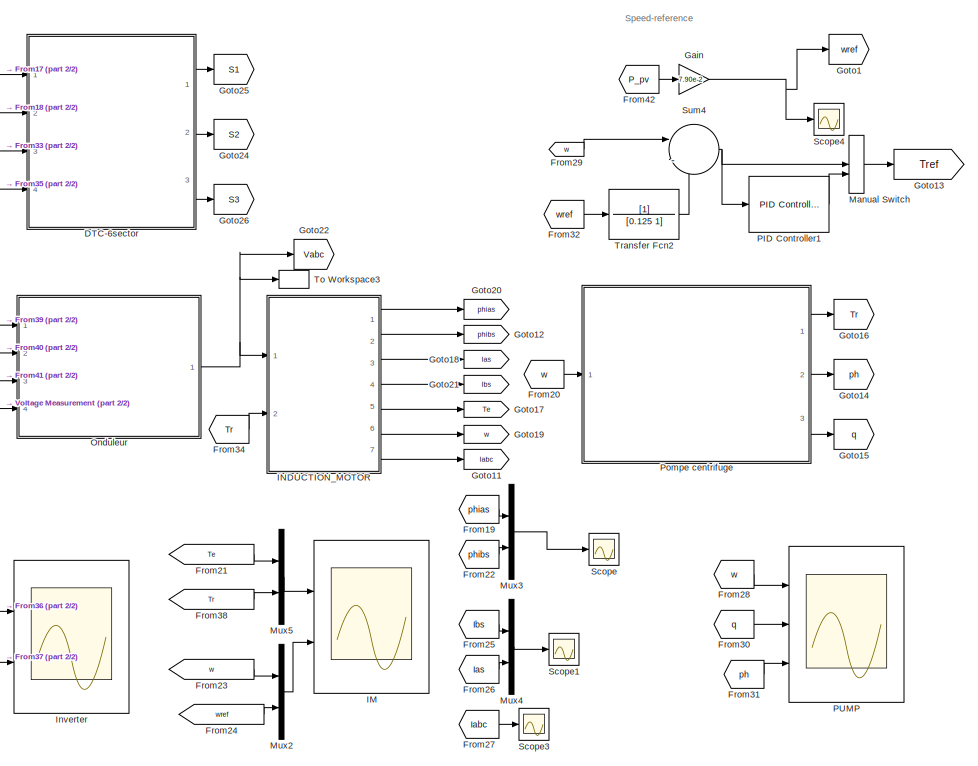
[diagram: root canvas - part 1/2, right side, full height]
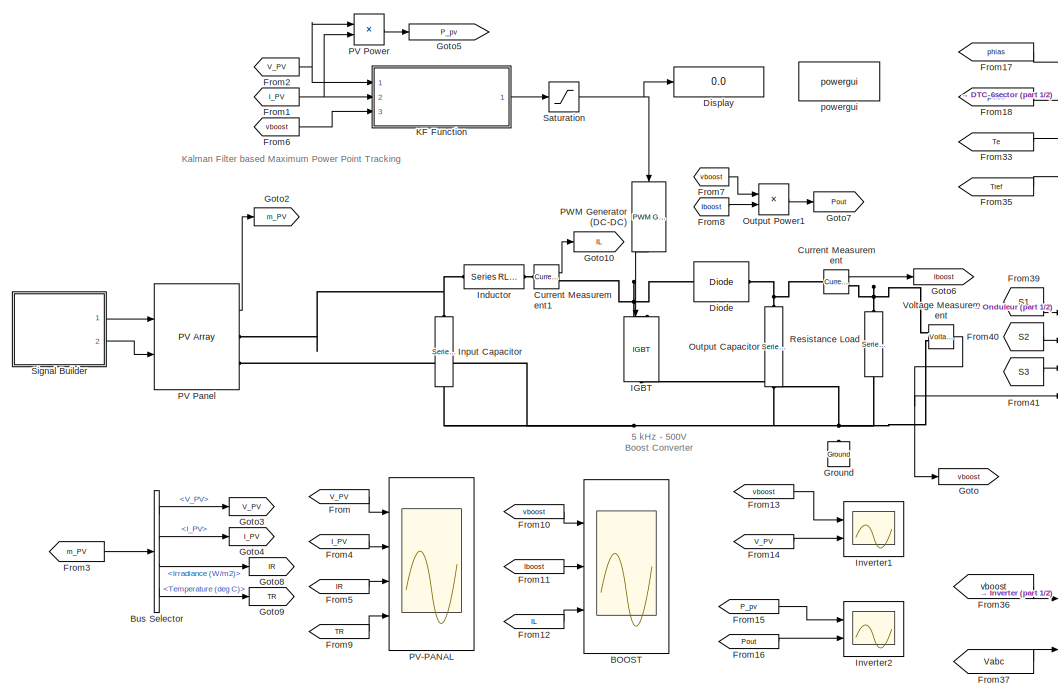
[diagram: root canvas - part 2/2, left side, full height]
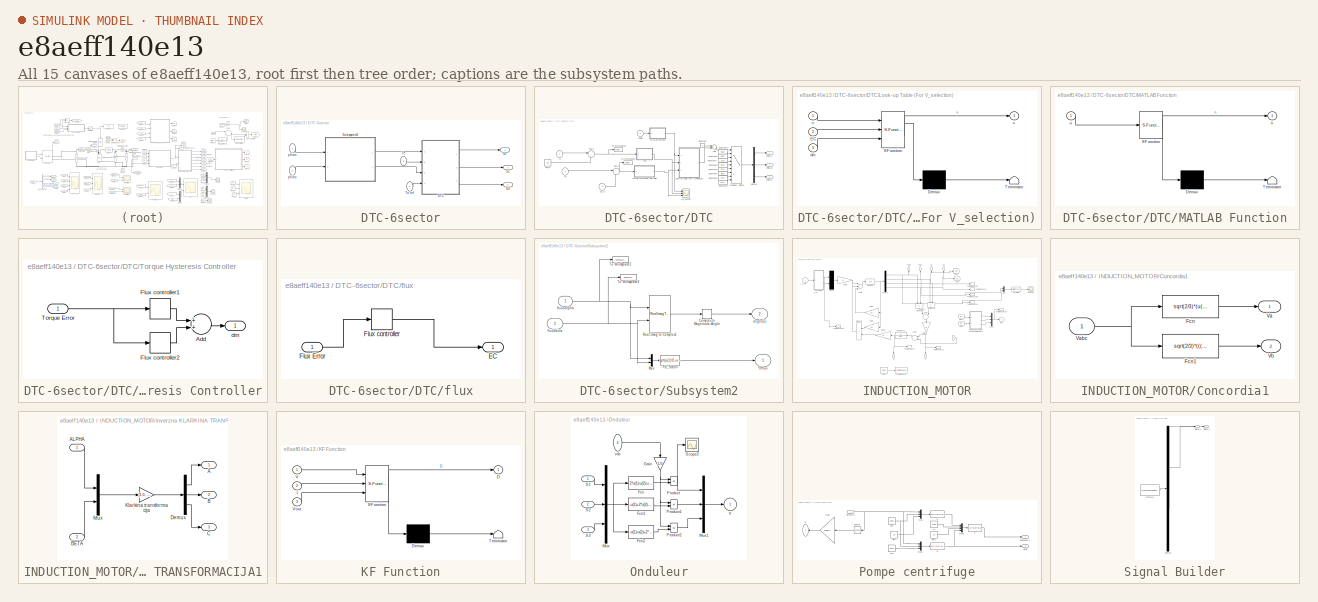
[diagram: thumbnail index - all 15 canvases of the model, root first then tree order]
MODEL slx_e8aeff140e13
KIND model
CONFIG AbsTol = auto
CONFIG EnableMultiTasking = off
CONFIG FixedStep = auto
CONFIG MaxStep = auto
CONFIG MinStep = auto
CONFIG RelTol = 1e-3
CONFIG SampleTimeConstraint = Unconstrained
CONFIG Solver = ode45
CONFIG SolverName = ode45
CONFIG StartTime = 0.0
CONFIG StopTime = 6
BLOCK [Reference]  Output Capacitor     REF=powerlib/Elements/Series RLC Branch
  Ports = [0, 0, 0, 0, 0, 1, 1]
  SourceBlock = powerlib/Elements/Series RLC Branch
  SourceProductBaseCode = PS
  SourceProductName = Simscape Power Systems
  SourceType = Series RLC Branch
BLOCK [Reference]  Resistance Load        REF=powerlib/Elements/Series RLC Branch
  Ports = [0, 0, 0, 0, 0, 1, 1]
  SourceBlock = powerlib/Elements/Series RLC Branch
  SourceProductBaseCode = PS
  SourceProductName = Simscape Power Systems
  SourceType = Series RLC Branch
BLOCK [Scope] BOOST
  Floating = off
  NumInputPorts = 3
  Ports = [3]
  ScopeSpecificationString = Simulink.scopes.TimeScopeBlockCfg('CurrentConfiguration', extmgr.ConfigurationSet(extmgr.Configuration('Core','General UI',true,'FigureColor',[1 1 1]),extmgr.Configuration('Core','Source UI',true),extmgr.Configuration('Sources','WiredSimulink',true,'DataLoggingVariableName','ScopeData1'),extmgr.Configuration('Visuals','Time Domain',true,'SerializedDisplays',{struct('MinYLimReal','-62.20742','MaxYL...<+3096ch>
BLOCK [BusSelector] Bus Selector
  OutputAsBus = off
  OutputSignals = V_PV,I_PV,Irradiance (W/m2),Temperature (deg C)
  Ports = [1, 4]
BLOCK [Reference] Current Measurement  REF=powerlib/Measurements/Current Measurement
  Ports = [0, 1, 0, 0, 0, 1, 1]
  SourceBlock = powerlib/Measurements/Current Measurement
  SourceProductBaseCode = PS
  SourceProductName = Simscape Power Systems
  SourceType = Current Measurement
  UserDataPersistent = on
BLOCK [Reference] Current Measurement1  REF=powerlib/Measurements/Current Measurement
  Ports = [0, 1, 0, 0, 0, 1, 1]
  SourceBlock = powerlib/Measurements/Current Measurement
  SourceProductBaseCode = PS
  SourceProductName = Simscape Power Systems
  SourceType = Current Measurement
  UserDataPersistent = on
BLOCK [SubSystem] DTC-6sector
  Ports = [4, 3]
  RequestExecContextInheritance = off
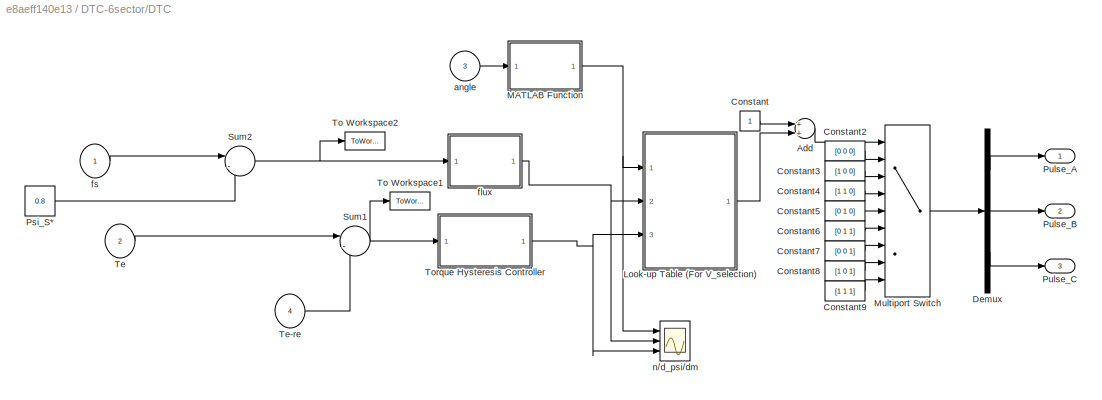
BLOCK [SubSystem] DTC-6sector/DTC
  Ports = [4, 3]
  RequestExecContextInheritance = off
BLOCK [Sum] DTC-6sector/DTC/Add
  InputSameDT = off
  OutDataTypeStr = Inherit: Inherit via internal rule
  Ports = [2, 1]
  SaturateOnIntegerOverflow = off
BLOCK [Constant] DTC-6sector/DTC/Constant
BLOCK [Constant] DTC-6sector/DTC/Constant2
  Value = [0 0 0]
BLOCK [Constant] DTC-6sector/DTC/Constant3
  Value = [1 0 0]
BLOCK [Constant] DTC-6sector/DTC/Constant4
  Value = [1 1 0]
BLOCK [Constant] DTC-6sector/DTC/Constant5
  Value = [0 1 0]
BLOCK [Constant] DTC-6sector/DTC/Constant6
  Value = [0 1 1]
BLOCK [Constant] DTC-6sector/DTC/Constant7
  Value = [0 0 1]
BLOCK [Constant] DTC-6sector/DTC/Constant8
  Value = [1 0 1]
BLOCK [Constant] DTC-6sector/DTC/Constant9
  Value = [1 1 1]
BLOCK [Demux] DTC-6sector/DTC/Demux
  DisplayOption = bar
  Outputs = 3
  Ports = [1, 3]
BLOCK [SubSystem] DTC-6sector/DTC/Look-up Table (For V_selection)
  ErrorFcn = Stateflow.Translate.translate
  PermitHierarchicalResolution = ExplicitOnly
  Ports = [3, 1]
  RequestExecContextInheritance = off
  SFBlockType = MATLAB Function
  TreatAsAtomicUnit = on
BLOCK [Demux] DTC-6sector/DTC/Look-up Table (For V_selection)/ Demux 
  Outputs = 1
  Ports = [1, 1]
BLOCK [S-Function] DTC-6sector/DTC/Look-up Table (For V_selection)/ SFunction 
  EnableBusSupport = on
  FunctionName = sf_sfun
  PortCounts = [3 2]
  Ports = [3, 2]
  SFcnIsStateOwnerBlock = off
  SFunctionDeploymentMode = off
  Tag = Stateflow S-Function KALMDTC 1
BLOCK [Terminator] DTC-6sector/DTC/Look-up Table (For V_selection)/ Terminator 
BLOCK [Inport] DTC-6sector/DTC/Look-up Table (For V_selection)/EC
  IconDisplay = Port number
  Port = 2
BLOCK [Inport] DTC-6sector/DTC/Look-up Table (For V_selection)/dm
  IconDisplay = Port number
  Port = 3
BLOCK [Inport] DTC-6sector/DTC/Look-up Table (For V_selection)/n
  IconDisplay = Port number
BLOCK [Outport] DTC-6sector/DTC/Look-up Table (For V_selection)/v
  IconDisplay = Port number
BLOCK [SubSystem] DTC-6sector/DTC/MATLAB Function
  ErrorFcn = Stateflow.Translate.translate
  PermitHierarchicalResolution = ExplicitOnly
  Ports = [1, 1]
  RequestExecContextInheritance = off
  SFBlockType = MATLAB Function
  TreatAsAtomicUnit = on
BLOCK [Demux] DTC-6sector/DTC/MATLAB Function/ Demux 
  Outputs = 1
  Ports = [1, 1]
BLOCK [S-Function] DTC-6sector/DTC/MATLAB Function/ SFunction 
  EnableBusSupport = on
  FunctionName = sf_sfun
  PortCounts = [1 2]
  Ports = [1, 2]
  SFcnIsStateOwnerBlock = off
  SFunctionDeploymentMode = off
  Tag = Stateflow S-Function KALMDTC 3
BLOCK [Terminator] DTC-6sector/DTC/MATLAB Function/ Terminator 
BLOCK [Outport] DTC-6sector/DTC/MATLAB Function/n
  IconDisplay = Port number
BLOCK [Inport] DTC-6sector/DTC/MATLAB Function/u
  IconDisplay = Port number
BLOCK [MultiPortSwitch] DTC-6sector/DTC/Multiport Switch
  InputSameDT = off
  Inputs = 8
  Ports = [9, 1]
  SaturateOnIntegerOverflow = off
BLOCK [Constant] DTC-6sector/DTC/Psi_S*
  Value = 0.8
BLOCK [Outport] DTC-6sector/DTC/Pulse_A
  IconDisplay = Port number
BLOCK [Outport] DTC-6sector/DTC/Pulse_B
  IconDisplay = Port number
  Port = 2
BLOCK [Outport] DTC-6sector/DTC/Pulse_C
  IconDisplay = Port number
  Port = 3
BLOCK [Sum] DTC-6sector/DTC/Sum1
  IconShape = round
  InputSameDT = off
  Inputs = |-+
  OutDataTypeStr = Inherit: Inherit via internal rule
  Ports = [2, 1]
  SaturateOnIntegerOverflow = off
BLOCK [Sum] DTC-6sector/DTC/Sum2
  IconShape = round
  InputSameDT = off
  Inputs = |-+
  OutDataTypeStr = Inherit: Inherit via internal rule
  Ports = [2, 1]
  SaturateOnIntegerOverflow = off
BLOCK [Inport] DTC-6sector/DTC/Te
  IconDisplay = Port number
  Port = 2
BLOCK [Inport] DTC-6sector/DTC/Te-re
  IconDisplay = Port number
  Port = 4
BLOCK [ToWorkspace] DTC-6sector/DTC/To Workspace1
  MaxDataPoints = inf
  Ports = [1]
  SampleTime = -1
  VariableName = Terr1
BLOCK [ToWorkspace] DTC-6sector/DTC/To Workspace2
  MaxDataPoints = inf
  Ports = [1]
  SampleTime = -1
  VariableName = FXerr
BLOCK [SubSystem] DTC-6sector/DTC/Torque Hysteresis Controller
  Ports = [1, 1]
  RequestExecContextInheritance = off
BLOCK [Sum] DTC-6sector/DTC/Torque Hysteresis Controller/Add
  InputSameDT = off
  OutDataTypeStr = Inherit: Inherit via internal rule
  Ports = [2, 1]
  SaturateOnIntegerOverflow = off
BLOCK [Relay] DTC-6sector/DTC/Torque Hysteresis Controller/Flux controller1
  InputProcessing = Elements as channels (sample based)
  OffSwitchValue = 0
  OnSwitchValue = 0.002
BLOCK [Relay] DTC-6sector/DTC/Torque Hysteresis Controller/Flux controller2
  InputProcessing = Elements as channels (sample based)
  OffOutputValue = -1
  OffSwitchValue = -0.002
  OnOutputValue = 0
  OnSwitchValue = 0
BLOCK [Inport] DTC-6sector/DTC/Torque Hysteresis Controller/Torque Error
  IconDisplay = Port number
BLOCK [Outport] DTC-6sector/DTC/Torque Hysteresis Controller/dm
  IconDisplay = Port number
BLOCK [Inport] DTC-6sector/DTC/angle
  IconDisplay = Port number
  Port = 3
BLOCK [SubSystem] DTC-6sector/DTC/flux
  Ports = [1, 1]
  RequestExecContextInheritance = off
BLOCK [Outport] DTC-6sector/DTC/flux/EC
  IconDisplay = Port number
BLOCK [Inport] DTC-6sector/DTC/flux/Flux Error
  IconDisplay = Port number
BLOCK [Relay] DTC-6sector/DTC/flux/Flux controller
  InputProcessing = Elements as channels (sample based)
  OffSwitchValue = -0.0002
  OnSwitchValue = 0.0002
BLOCK [Inport] DTC-6sector/DTC/fs
  IconDisplay = Port number
BLOCK [Scope] DTC-6sector/DTC/n//d_psi//dm
  Floating = off
  NumInputPorts = 3
  Ports = [3]
  ScopeSpecificationString = Simulink.scopes.TimeScopeBlockCfg('CurrentConfiguration', extmgr.ConfigurationSet(extmgr.Configuration('Core','General UI',true),extmgr.Configuration('Core','Source UI',true),extmgr.Configuration('Sources','WiredSimulink',true,'DataLoggingVariableName','ScopeData5'),extmgr.Configuration('Visuals','Time Domain',true,'SerializedDisplays',{struct('MinYLimReal','0.375','MaxYLimReal','6.625','YLabelRea...<+2787ch>
BLOCK [Outport] DTC-6sector/S1
  IconDisplay = Port number
BLOCK [Outport] DTC-6sector/S2
  IconDisplay = Port number
  Port = 2
BLOCK [Outport] DTC-6sector/S3
  IconDisplay = Port number
  Port = 3
BLOCK [SubSystem] DTC-6sector/Subsystem2
  Ports = [2, 2]
  RequestExecContextInheritance = off
BLOCK [Outport] DTC-6sector/Subsystem2/*m*flux
  IconDisplay = Port number
BLOCK [ComplexToMagnitudeAngle] DTC-6sector/Subsystem2/Complex to Magnitude-Angle
  Output = Angle
  Ports = [1, 1]
BLOCK [Mux] DTC-6sector/Subsystem2/Mux
  DisplayOption = bar
  Inputs = 2
  Ports = [2, 1]
BLOCK [Fcn] DTC-6sector/Subsystem2/Psi_Stator
  Expr = sqrt(u(1)^2+u(2)^2)
BLOCK [RealImagToComplex] DTC-6sector/Subsystem2/Real-Imag to Complex1
  Ports = [2, 1]
  SampleTime = 0.00001
BLOCK [ToWorkspace] DTC-6sector/Subsystem2/To Workspace2
  MaxDataPoints = inf
  Ports = [1]
  SampleTime = -1
  VariableName = x
BLOCK [ToWorkspace] DTC-6sector/Subsystem2/To Workspace3
  MaxDataPoints = inf
  Ports = [1]
  SampleTime = -1
  VariableName = y
BLOCK [Outport] DTC-6sector/Subsystem2/angle(u)
  IconDisplay = Port number
  Port = 2
BLOCK [Inport] DTC-6sector/Subsystem2/flux-s-alpha
  IconDisplay = Port number
BLOCK [Inport] DTC-6sector/Subsystem2/flux-s-bitta
  IconDisplay = Port number
  Port = 2
BLOCK [Inport] DTC-6sector/Te
  IconDisplay = Port number
  Port = 3
BLOCK [Inport] DTC-6sector/Te-ref
  IconDisplay = Port number
  Port = 4
BLOCK [Inport] DTC-6sector/phias
  IconDisplay = Port number
BLOCK [Inport] DTC-6sector/phibs
  IconDisplay = Port number
  Port = 2
BLOCK [Reference] Diode  REF=powerlib/Power
Electronics/Diode
  Ports = [0, 0, 0, 0, 0, 1, 1]
  SourceBlock = powerlib/Power\nElectronics/Diode
  SourceProductBaseCode = PS
  SourceProductName = Simscape Power Systems
  SourceType = Diode
BLOCK [Display] Display
  Decimation = 1
  Ports = [1]
BLOCK [From] From
  GotoTag = V_PV
  TagVisibility = global
BLOCK [From] From1
  CloseFcn = tagdialog Close
  GotoTag = I_PV
  TagVisibility = global
BLOCK [From] From10
  GotoTag = vboost
BLOCK [From] From11
  GotoTag = Iboost
BLOCK [From] From12
  GotoTag = IL
BLOCK [From] From13
  GotoTag = vboost
BLOCK [From] From14
  GotoTag = V_PV
  TagVisibility = global
BLOCK [From] From15
  GotoTag = P_pv
BLOCK [From] From16
  GotoTag = Pout
BLOCK [From] From17
  GotoTag = phias
  TagVisibility = global
BLOCK [From] From18
  GotoTag = phibs
  TagVisibility = global
BLOCK [From] From19
  GotoTag = phias
  TagVisibility = global
BLOCK [From] From2
  CloseFcn = tagdialog Close
  GotoTag = V_PV
  TagVisibility = global
BLOCK [From] From20
  GotoTag = w
  TagVisibility = global
BLOCK [From] From21
  CloseFcn = tagdialog Close
  GotoTag = Te
  TagVisibility = global
BLOCK [From] From22
  GotoTag = phibs
  TagVisibility = global
BLOCK [From] From23
  CloseFcn = tagdialog Close
  GotoTag = w
  TagVisibility = global
BLOCK [From] From24
  CloseFcn = tagdialog Close
  GotoTag = wref
  TagVisibility = global
BLOCK [From] From25
  GotoTag = Ibs
  TagVisibility = global
BLOCK [From] From26
  GotoTag = Ias
  TagVisibility = global
BLOCK [From] From27
  GotoTag = Iabc
  TagVisibility = global
BLOCK [From] From28
  GotoTag = w
  TagVisibility = global
BLOCK [From] From29
  GotoTag = w
  TagVisibility = global
BLOCK [From] From3
  GotoTag = m_PV
  TagVisibility = global
BLOCK [From] From30
  GotoTag = q
  TagVisibility = global
BLOCK [From] From31
  GotoTag = ph
  TagVisibility = global
BLOCK [From] From32
  GotoTag = wref
  TagVisibility = global
BLOCK [From] From33
  GotoTag = Te
  TagVisibility = global
BLOCK [From] From34
  GotoTag = Tr
  TagVisibility = global
BLOCK [From] From35
  GotoTag = Tref
BLOCK [From] From36
  GotoTag = vboost
BLOCK [From] From37
  GotoTag = Vabc
BLOCK [From] From38
  CloseFcn = tagdialog Close
  GotoTag = Tr
  TagVisibility = global
BLOCK [From] From39
  GotoTag = S1
BLOCK [From] From4
  GotoTag = I_PV
  TagVisibility = global
BLOCK [From] From40
  GotoTag = S2
BLOCK [From] From41
  GotoTag = S3
BLOCK [From] From42
  GotoTag = P_pv
BLOCK [From] From5
  GotoTag = IR
  TagVisibility = global
BLOCK [From] From6
  CloseFcn = tagdialog Close
  GotoTag = vboost
BLOCK [From] From7
  GotoTag = vboost
BLOCK [From] From8
  GotoTag = Iboost
BLOCK [From] From9
  GotoTag = TR
  TagVisibility = global
BLOCK [Gain] Gain
  Gain = 7.90e-2
  OutDataTypeStr = Inherit: Inherit via internal rule
  ParamDataTypeStr = Inherit: Inherit via internal rule
  SaturateOnIntegerOverflow = off
BLOCK [Goto] Goto
  GotoTag = vboost
BLOCK [Goto] Goto1
  GotoTag = wref
  TagVisibility = global
BLOCK [Goto] Goto10
  GotoTag = IL
BLOCK [Goto] Goto11
  GotoTag = Iabc
  TagVisibility = global
BLOCK [Goto] Goto12
  GotoTag = phibs
  TagVisibility = global
BLOCK [Goto] Goto13
  GotoTag = Tref
BLOCK [Goto] Goto14
  GotoTag = ph
  TagVisibility = global
BLOCK [Goto] Goto15
  GotoTag = q
  TagVisibility = global
BLOCK [Goto] Goto16
  GotoTag = Tr
  TagVisibility = global
BLOCK [Goto] Goto17
  GotoTag = Te
  TagVisibility = global
BLOCK [Goto] Goto18
  GotoTag = Ias
  TagVisibility = global
BLOCK [Goto] Goto19
  GotoTag = w
  TagVisibility = global
BLOCK [Goto] Goto2
  GotoTag = m_PV
  TagVisibility = global
BLOCK [Goto] Goto20
  GotoTag = phias
  TagVisibility = global
BLOCK [Goto] Goto21
  GotoTag = Ibs
  TagVisibility = global
BLOCK [Goto] Goto22
  GotoTag = Vabc
BLOCK [Goto] Goto24
  GotoTag = S2
BLOCK [Goto] Goto25
  GotoTag = S1
BLOCK [Goto] Goto26
  GotoTag = S3
BLOCK [Goto] Goto3
  GotoTag = V_PV
  TagVisibility = global
BLOCK [Goto] Goto4
  GotoTag = I_PV
  TagVisibility = global
BLOCK [Goto] Goto5
  GotoTag = P_pv
BLOCK [Goto] Goto6
  GotoTag = Iboost
BLOCK [Goto] Goto7
  GotoTag = Pout
BLOCK [Goto] Goto8
  GotoTag = IR
  TagVisibility = global
BLOCK [Goto] Goto9
  GotoTag = TR
  TagVisibility = global
BLOCK [Reference] Ground  REF=powerlib/Elements/Ground
  Ports = [0, 0, 0, 0, 0, 1]
  SourceBlock = powerlib/Elements/Ground
  SourceProductBaseCode = PS
  SourceProductName = Simscape Power Systems
  SourceType = Ground
BLOCK [Reference] IGBT    REF=powerlib/Power
Electronics/IGBT
  Ports = [1, 0, 0, 0, 0, 1, 1]
  SourceBlock = powerlib/Power\nElectronics/IGBT
  SourceProductBaseCode = PS
  SourceProductName = Simscape Power Systems
  SourceType = IGBT
BLOCK [Scope] IM
  Floating = off
  NumInputPorts = 2
  Ports = [2]
  ScopeSpecificationString = Simulink.scopes.TimeScopeBlockCfg('CurrentConfiguration', extmgr.ConfigurationSet(extmgr.Configuration('Core','General UI',true,'FigureColor',[1 1 1]),extmgr.Configuration('Core','Source UI',true),extmgr.Configuration('Sources','WiredSimulink',true,'DataLoggingVariableName','ScopeData2'),extmgr.Configuration('Visuals','Time Domain',true,'SerializedDisplays',{struct('MinYLimReal','-5.35815','MaxYLi...<+2557ch>
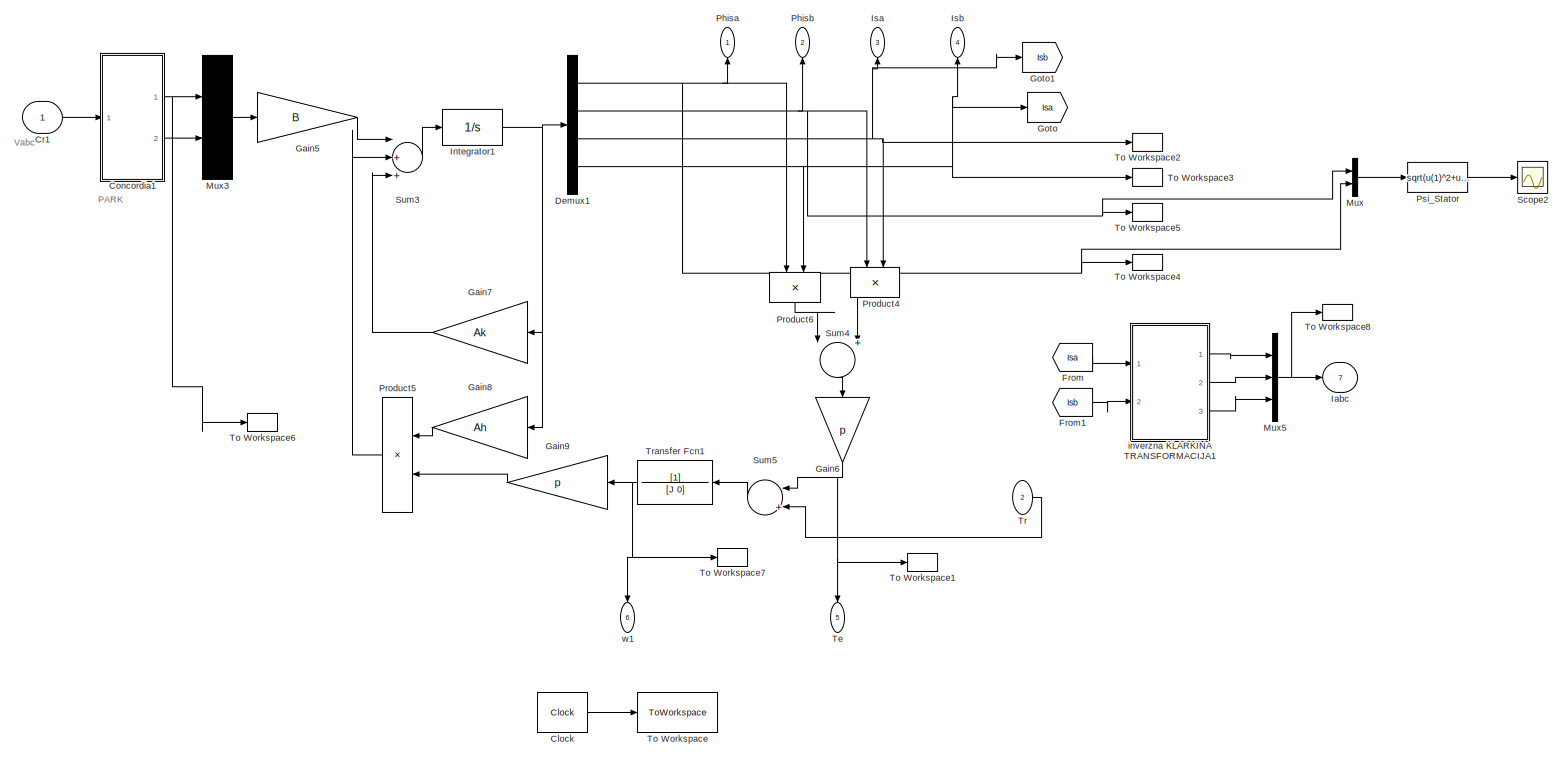
[diagram: INDUCTION_MOTOR - part 1/1, most of the canvas]
BLOCK [SubSystem] INDUCTION_MOTOR
  Ports = [2, 7]
  RequestExecContextInheritance = off
BLOCK [Clock] INDUCTION_MOTOR/Clock
BLOCK [SubSystem] INDUCTION_MOTOR/Concordia1
  Ports = [1, 2]
  RequestExecContextInheritance = off
BLOCK [Fcn] INDUCTION_MOTOR/Concordia1/Fcn
  Expr = sqrt(2/3)*(u(1)-(1/2)*u(2)-(1/2)*u(3))
  SampleTime = 0.00001
BLOCK [Fcn] INDUCTION_MOTOR/Concordia1/Fcn1
  Expr = sqrt(2/3)*(((sqrt(3))/2)*u(2)-((sqrt(3))/2)*u(3))
  SampleTime = 0.00001
BLOCK [Outport] INDUCTION_MOTOR/Concordia1/Va
  IconDisplay = Port number
BLOCK [Inport] INDUCTION_MOTOR/Concordia1/Vabc
  IconDisplay = Port number
BLOCK [Outport] INDUCTION_MOTOR/Concordia1/Vb
  IconDisplay = Port number
  Port = 2
BLOCK [Inport] INDUCTION_MOTOR/Cr1
  IconDisplay = Port number
BLOCK [Demux] INDUCTION_MOTOR/Demux1
  DisplayOption = bar
  Ports = [1, 4]
BLOCK [From] INDUCTION_MOTOR/From
  GotoTag = Isa
BLOCK [From] INDUCTION_MOTOR/From1
  GotoTag = Isb
BLOCK [Gain] INDUCTION_MOTOR/Gain5
  Gain = B
  Multiplication = Matrix(K*u) (u vector)
  OutDataTypeStr = Inherit: Inherit via internal rule
  ParamDataTypeStr = Inherit: Inherit via internal rule
  SampleTime = 0.00001
  SaturateOnIntegerOverflow = off
BLOCK [Gain] INDUCTION_MOTOR/Gain6
  Gain = p
  OutDataTypeStr = Inherit: Inherit via internal rule
  ParamDataTypeStr = Inherit: Inherit via internal rule
  SampleTime = 0.00001
  SaturateOnIntegerOverflow = off
BLOCK [Gain] INDUCTION_MOTOR/Gain7
  Gain = Ak
  Multiplication = Matrix(K*u)
  OutDataTypeStr = Inherit: Inherit via internal rule
  ParamDataTypeStr = Inherit: Inherit via internal rule
  SampleTime = 0.00001
  SaturateOnIntegerOverflow = off
BLOCK [Gain] INDUCTION_MOTOR/Gain8
  Gain = Ah
  Multiplication = Matrix(K*u)
  OutDataTypeStr = Inherit: Inherit via internal rule
  ParamDataTypeStr = Inherit: Inherit via internal rule
  SampleTime = 0.00001
  SaturateOnIntegerOverflow = off
BLOCK [Gain] INDUCTION_MOTOR/Gain9
  Gain = p
  OutDataTypeStr = Inherit: Inherit via internal rule
  ParamDataTypeStr = Inherit: Inherit via internal rule
  SampleTime = 0.00001
  SaturateOnIntegerOverflow = off
BLOCK [Goto] INDUCTION_MOTOR/Goto
  GotoTag = Isa
BLOCK [Goto] INDUCTION_MOTOR/Goto1
  GotoTag = Isb
BLOCK [Outport] INDUCTION_MOTOR/Iabc
  IconDisplay = Port number
  Port = 7
BLOCK [Integrator] INDUCTION_MOTOR/Integrator1
  Ports = [1, 1]
BLOCK [Outport] INDUCTION_MOTOR/Isa
  IconDisplay = Port number
  Port = 3
BLOCK [Outport] INDUCTION_MOTOR/Isb
  IconDisplay = Port number
  Port = 4
BLOCK [Mux] INDUCTION_MOTOR/Mux
  DisplayOption = bar
  Inputs = 2
  Ports = [2, 1]
BLOCK [Mux] INDUCTION_MOTOR/Mux3
  DisplayOption = bar
  Inputs = 2
  Ports = [2, 1]
BLOCK [Mux] INDUCTION_MOTOR/Mux5
  DisplayOption = bar
  Inputs = 3
  Ports = [3, 1]
BLOCK [Outport] INDUCTION_MOTOR/Phisa
  IconDisplay = Port number
BLOCK [Outport] INDUCTION_MOTOR/Phisb
  IconDisplay = Port number
  Port = 2
BLOCK [Product] INDUCTION_MOTOR/Product4
  InputSameDT = off
  OutDataTypeStr = Inherit: Inherit via internal rule
  Ports = [2, 1]
  SampleTime = 0.00001
  SaturateOnIntegerOverflow = off
BLOCK [Product] INDUCTION_MOTOR/Product5
  InputSameDT = off
  OutDataTypeStr = Inherit: Inherit via internal rule
  Ports = [2, 1]
  SampleTime = 0.00001
  SaturateOnIntegerOverflow = off
BLOCK [Product] INDUCTION_MOTOR/Product6
  InputSameDT = off
  OutDataTypeStr = Inherit: Inherit via internal rule
  Ports = [2, 1]
  SampleTime = 0.00001
  SaturateOnIntegerOverflow = off
BLOCK [Fcn] INDUCTION_MOTOR/Psi_Stator
  Expr = sqrt(u(1)^2+u(2)^2)
BLOCK [Scope] INDUCTION_MOTOR/Scope2
  Floating = off
  NumInputPorts = 1
  Ports = [1]
  ScopeSpecificationString = Simulink.scopes.TimeScopeBlockCfg('CurrentConfiguration', extmgr.ConfigurationSet(extmgr.Configuration('Core','General UI',true),extmgr.Configuration('Core','Source UI',true),extmgr.Configuration('Sources','WiredSimulink',true,'DataLoggingVariableName','ScopeData2'),extmgr.Configuration('Visuals','Time Domain',true,'SerializedDisplays',{struct('MinYLimReal','-0.10037','MaxYLimReal','0.90332','YLab...<+1369ch>
BLOCK [Sum] INDUCTION_MOTOR/Sum3
  InputSameDT = off
  Inputs = |+++
  OutDataTypeStr = Inherit: Inherit via internal rule
  Ports = [3, 1]
  SampleTime = 0.00001
  SaturateOnIntegerOverflow = off
BLOCK [Sum] INDUCTION_MOTOR/Sum4
  InputSameDT = off
  Inputs = |+-
  OutDataTypeStr = Inherit: Inherit via internal rule
  Ports = [2, 1]
  SampleTime = 0.00001
  SaturateOnIntegerOverflow = off
BLOCK [Sum] INDUCTION_MOTOR/Sum5
  InputSameDT = off
  Inputs = |+-
  OutDataTypeStr = Inherit: Inherit via internal rule
  Ports = [2, 1]
  SampleTime = 0.00001
  SaturateOnIntegerOverflow = off
BLOCK [Outport] INDUCTION_MOTOR/Te
  IconDisplay = Port number
  Port = 5
BLOCK [ToWorkspace] INDUCTION_MOTOR/To Workspace
  MaxDataPoints = inf
  Ports = [1]
  SampleTime = 0.00001
  VariableName = t
BLOCK [ToWorkspace] INDUCTION_MOTOR/To Workspace1
  MaxDataPoints = inf
  Ports = [1]
  SampleTime = -1
  VariableName = Te
BLOCK [ToWorkspace] INDUCTION_MOTOR/To Workspace2
  MaxDataPoints = inf
  Ports = [1]
  SampleTime = -1
  VariableName = Isa
BLOCK [ToWorkspace] INDUCTION_MOTOR/To Workspace3
  MaxDataPoints = inf
  Ports = [1]
  SampleTime = -1
  VariableName = Isb
BLOCK [ToWorkspace] INDUCTION_MOTOR/To Workspace4
  MaxDataPoints = inf
  Ports = [1]
  SampleTime = -1
  VariableName = phisa
BLOCK [ToWorkspace] INDUCTION_MOTOR/To Workspace5
  MaxDataPoints = inf
  Ports = [1]
  SampleTime = -1
  VariableName = phisb
BLOCK [ToWorkspace] INDUCTION_MOTOR/To Workspace6
  MaxDataPoints = inf
  Ports = [1]
  SampleTime = -1
  VariableName = Vsa
BLOCK [ToWorkspace] INDUCTION_MOTOR/To Workspace7
  MaxDataPoints = inf
  Ports = [1]
  SampleTime = -1
  VariableName = w
BLOCK [ToWorkspace] INDUCTION_MOTOR/To Workspace8
  MaxDataPoints = inf
  Ports = [1]
  SampleTime = -1
  VariableName = Iabc
BLOCK [Inport] INDUCTION_MOTOR/Tr
  IconDisplay = Port number
  Port = 2
BLOCK [TransferFcn] INDUCTION_MOTOR/Transfer Fcn1
  Denominator = [J 0]
BLOCK [SubSystem] INDUCTION_MOTOR/inverzna KLARKINA TRANSFORMACIJA1
  Ports = [2, 3]
  RequestExecContextInheritance = off
BLOCK [Outport] INDUCTION_MOTOR/inverzna KLARKINA TRANSFORMACIJA1/A
  IconDisplay = Port number
BLOCK [Inport] INDUCTION_MOTOR/inverzna KLARKINA TRANSFORMACIJA1/ALPHA
  IconDisplay = Port number
BLOCK [Outport] INDUCTION_MOTOR/inverzna KLARKINA TRANSFORMACIJA1/B
  IconDisplay = Port number
  Port = 2
BLOCK [Inport] INDUCTION_MOTOR/inverzna KLARKINA TRANSFORMACIJA1/BETA
  IconDisplay = Port number
  Port = 2
BLOCK [Outport] INDUCTION_MOTOR/inverzna KLARKINA TRANSFORMACIJA1/C
  IconDisplay = Port number
  Port = 3
BLOCK [Demux] INDUCTION_MOTOR/inverzna KLARKINA TRANSFORMACIJA1/Demux
  DisplayOption = bar
  Outputs = 3
  Ports = [1, 3]
BLOCK [Gain] INDUCTION_MOTOR/inverzna KLARKINA TRANSFORMACIJA1/Klarkina transformacija
  Gain = [1 0; -1/2  sqrt(3)/2;  -1/2  -sqrt(3)/2]
  Multiplication = Matrix(K*u)
  OutDataTypeStr = Inherit: Inherit via internal rule
  ParamDataTypeStr = Inherit: Inherit via internal rule
  SaturateOnIntegerOverflow = off
BLOCK [Mux] INDUCTION_MOTOR/inverzna KLARKINA TRANSFORMACIJA1/Mux
  DisplayOption = bar
  Inputs = 2
  Ports = [2, 1]
BLOCK [Outport] INDUCTION_MOTOR/w1
  IconDisplay = Port number
  Port = 6
BLOCK [Reference] Inductor   REF=powerlib/Elements/Series RLC Branch
  Ports = [0, 0, 0, 0, 0, 1, 1]
  SourceBlock = powerlib/Elements/Series RLC Branch
  SourceProductBaseCode = PS
  SourceProductName = Simscape Power Systems
  SourceType = Series RLC Branch
BLOCK [Reference] Input Capacitor   REF=powerlib/Elements/Series RLC Branch
  Ports = [0, 0, 0, 0, 0, 1, 1]
  SourceBlock = powerlib/Elements/Series RLC Branch
  SourceProductBaseCode = PS
  SourceProductName = Simscape Power Systems
  SourceType = Series RLC Branch
BLOCK [Scope] Inverter
  Floating = off
  NumInputPorts = 2
  Ports = [2]
  ScopeSpecificationString = Simulink.scopes.TimeScopeBlockCfg('CurrentConfiguration', extmgr.ConfigurationSet(extmgr.Configuration('Core','General UI',true),extmgr.Configuration('Core','Source UI',true),extmgr.Configuration('Sources','WiredSimulink',true,'DataLoggingVariableName','ScopeData3'),extmgr.Configuration('Visuals','Time Domain',true,'SerializedDisplays',{struct('MinYLimReal','-61.94358','MaxYLimReal','557.4922','YL...<+2000ch>
BLOCK [Scope] Inverter1
  Floating = off
  NumInputPorts = 2
  Ports = [2]
  ScopeSpecificationString = Simulink.scopes.TimeScopeBlockCfg('CurrentConfiguration', extmgr.ConfigurationSet(extmgr.Configuration('Core','General UI',true),extmgr.Configuration('Core','Source UI',true),extmgr.Configuration('Sources','WiredSimulink',true,'DataLoggingVariableName','ScopeData1'),extmgr.Configuration('Visuals','Time Domain',true,'SerializedDisplays',{struct('MinYLimReal','-53.74356','MaxYLimReal','483.69204','Y...<+1971ch>
BLOCK [Scope] Inverter2
  Floating = off
  NumInputPorts = 2
  Ports = [2]
  ScopeSpecificationString = Simulink.scopes.TimeScopeBlockCfg('CurrentConfiguration', extmgr.ConfigurationSet(extmgr.Configuration('Core','General UI',true),extmgr.Configuration('Core','Source UI',true),extmgr.Configuration('Sources','WiredSimulink',true,'DataLoggingVariableName','ScopeData2'),extmgr.Configuration('Visuals','Time Domain',true,'SerializedDisplays',{struct('MinYLimReal','-235.5757','MaxYLimReal','2120.18425','...<+2044ch>
BLOCK [SubSystem] KF Function
  ErrorFcn = Stateflow.Translate.translate
  PermitHierarchicalResolution = ExplicitOnly
  Ports = [3, 1]
  RequestExecContextInheritance = off
  SFBlockType = MATLAB Function
  TreatAsAtomicUnit = on
BLOCK [Demux] KF Function/ Demux 
  Outputs = 1
  Ports = [1, 1]
BLOCK [S-Function] KF Function/ SFunction 
  EnableBusSupport = on
  FunctionName = sf_sfun
  PortCounts = [3 2]
  Ports = [3, 2]
  SFcnIsStateOwnerBlock = off
  SFunctionDeploymentMode = off
  Tag = Stateflow S-Function KALMDTC 2
BLOCK [Terminator] KF Function/ Terminator 
BLOCK [Outport] KF Function/D
  IconDisplay = Port number
BLOCK [Inport] KF Function/I
  IconDisplay = Port number
  Port = 2
BLOCK [Inport] KF Function/V
  IconDisplay = Port number
BLOCK [Inport] KF Function/Vout
  IconDisplay = Port number
  Port = 3
BLOCK [ManualSwitch] Manual Switch
  CurrentSetting = 0
BLOCK [Mux] Mux2
  DisplayOption = bar
  Inputs = 2
  Ports = [2, 1]
BLOCK [Mux] Mux3
  DisplayOption = bar
  Inputs = 2
  Ports = [2, 1]
BLOCK [Mux] Mux4
  DisplayOption = bar
  Inputs = 2
  Ports = [2, 1]
BLOCK [Mux] Mux5
  DisplayOption = bar
  Inputs = 2
  Ports = [2, 1]
BLOCK [SubSystem] Onduleur
  Ports = [4, 1]
  RequestExecContextInheritance = off
BLOCK [Fcn] Onduleur/Fcn
  Expr = 2*u(1)-u(2)-u(3)
BLOCK [Fcn] Onduleur/Fcn1
  Expr = -u(1)+2*u(2)-u(3)
BLOCK [Fcn] Onduleur/Fcn2
  Expr = -u(1)-u(2)+2*u(3)
BLOCK [Gain] Onduleur/Gain
  Gain = 1/3
BLOCK [Mux] Onduleur/Mux
  DisplayOption = bar
  Inputs = 3
  Ports = [3, 1]
BLOCK [Mux] Onduleur/Mux1
  DisplayOption = bar
  Inputs = 3
  Ports = [3, 1]
BLOCK [Product] Onduleur/Product
  InputSameDT = off
  Ports = [2, 1]
  RndMeth = Floor
BLOCK [Product] Onduleur/Product1
  InputSameDT = off
  Ports = [2, 1]
  RndMeth = Floor
BLOCK [Product] Onduleur/Product2
  InputSameDT = off
  Ports = [2, 1]
  RndMeth = Floor
BLOCK [Inport] Onduleur/S1
  IconDisplay = Port number
BLOCK [Inport] Onduleur/S2
  IconDisplay = Port number
  Port = 2
BLOCK [Inport] Onduleur/S3
  IconDisplay = Port number
  Port = 3
BLOCK [Scope] Onduleur/Scope3
  Floating = off
  NumInputPorts = 1
  Ports = [1]
  ScopeSpecificationString = C++SS(StrPVP('Location','[188, 355, 512, 594]'),StrPVP('Open','off'),MxPVP('AxesTitles',53,'struct(''axes1'',''%<SignalLabel>'')'),StrPVP('TimeRange','0.4000000000000004'),StrPVP('YMin','-600'),StrPVP('YMax','600'),StrPVP('SaveName','ScopeData8'),StrPVP('DataFormat','StructureWithTime'),StrPVP('BlockParamSampleTime','0'),StrPVP('LimitDataPoints','on'),StrPVP('Decimation','1'),StrPVP('BlockParamSam...<+17ch>
BLOCK [Outport] Onduleur/V
  IconDisplay = Port number
BLOCK [Inport] Onduleur/vdc
  IconDisplay = Port number
  Port = 4
BLOCK [Product] Output Power1
  InputSameDT = off
  OutDataTypeStr = Inherit: Inherit via internal rule
  Ports = [2, 1]
  RndMeth = Floor
  SaturateOnIntegerOverflow = off
BLOCK [Reference] PID Controller1  REF=simulink_need_slupdate/PID Controller
  Ports = [1, 1]
  SourceBlock = simulink_need_slupdate/PID Controller
  SourceProductBaseCode = SL
  SourceProductName = Simulink
  SourceType = PID Controller
BLOCK [Scope] PUMP
  Floating = off
  NumInputPorts = 3
  Ports = [3]
  ScopeSpecificationString = Simulink.scopes.TimeScopeBlockCfg('CurrentConfiguration', extmgr.ConfigurationSet(extmgr.Configuration('Core','General UI',true,'FigureColor',[1 1 1]),extmgr.Configuration('Core','Source UI',true),extmgr.Configuration('Sources','WiredSimulink',true,'DataLoggingVariableName','ScopeData5'),extmgr.Configuration('Visuals','Time Domain',true,'SerializedDisplays',{struct('MinYLimReal','-18.65254','MaxYL...<+2876ch>
BLOCK [Reference] PV Panel  REF=re_lib/Solar/PV Array
  AttributesFormatString = %<ModuleName>\n%<Nser>-module string\n%<Npar> parallel strings
  Ports = [2, 1, 0, 0, 0, 0, 2]
  SourceBlock = re_lib/Solar/PV Array
  SourceProductBaseCode = PS
  SourceProductName = Simscape Power Systems
  SourceType = PV array
BLOCK [Product] PV Power
  InputSameDT = off
  OutDataTypeStr = Inherit: Inherit via internal rule
  Ports = [2, 1]
  RndMeth = Floor
  SaturateOnIntegerOverflow = off
BLOCK [Scope] PV-PANAL
  Floating = off
  NumInputPorts = 4
  Ports = [4]
  ScopeSpecificationString = Simulink.scopes.TimeScopeBlockCfg('CurrentConfiguration', extmgr.ConfigurationSet(extmgr.Configuration('Core','General UI',true,'FigureColor',[1 1 1]),extmgr.Configuration('Core','Source UI',true),extmgr.Configuration('Sources','WiredSimulink',true,'DataLoggingVariableName','ScopeData6'),extmgr.Configuration('Visuals','Time Domain',true,'SerializedDisplays',{struct('MinYLimReal','-30.22198','MaxYL...<+3971ch>
BLOCK [Reference] PWM Generator (DC-DC)  REF=powerlib_meascontrol/Pulse & Signal
Generators/PWM Generator
(DC-DC)
  Ports = [1, 1]
  SourceBlock = powerlib_meascontrol/Pulse & Signal\nGenerators/PWM Generator\n(DC-DC)
  SourceProductBaseCode = PS
  SourceProductName = Simscape Power Systems
  SourceType = PWM Generator (DC-DC)
BLOCK [SubSystem] Pompe centrifuge
  Ports = [1, 3]
  RequestExecContextInheritance = off
BLOCK [Outport] Pompe centrifuge/Cr
  IconDisplay = Port number
BLOCK [Outport] Pompe centrifuge/Debit
  IconDisplay = Port number
  Port = 3
BLOCK [Gain] Pompe centrifuge/Gain
  Gain = 4.5e-4
  OutDataTypeStr = Inherit: Inherit via internal rule
  ParamDataTypeStr = Inherit: Inherit via internal rule
  SaturateOnIntegerOverflow = off
BLOCK [Fcn] Pompe centrifuge/H
  Expr = u(3)*((u(1)/u(2))^2)
BLOCK [Constant] Pompe centrifuge/Hm
  Value = 10
BLOCK [Mux] Pompe centrifuge/Mux
  DisplayOption = bar
  Inputs = 3
  Ports = [3, 1]
BLOCK [Mux] Pompe centrifuge/Mux1
  DisplayOption = bar
  Inputs = 3
  Ports = [3, 1]
BLOCK [Mux] Pompe centrifuge/Mux2
  DisplayOption = bar
  Ports = [4, 1]
BLOCK [Constant] Pompe centrifuge/Nm
  Value = 296.4
BLOCK [Constant] Pompe centrifuge/Nm2
  Value = 10
BLOCK [Fcn] Pompe centrifuge/P 
  Expr = u(1)*u(2)*u(3)*u(4)
BLOCK [Outport] Pompe centrifuge/Puissance P 
  IconDisplay = Port number
  Port = 2
BLOCK [Fcn] Pompe centrifuge/Q
  Expr = u(3)*(u(1)/u(2))
BLOCK [Constant] Pompe centrifuge/Qm
  Value = 0.001
BLOCK [Math] Pompe centrifuge/Square
  Operator = square
  Ports = [1, 1]
  RndMeth = Zero
BLOCK [Inport] Pompe centrifuge/Vitesse N
  IconDisplay = Port number
BLOCK [Constant] Pompe centrifuge/ro
  Value = 1000
BLOCK [Saturate] Saturation 
  InputPortMap = u0
  LowerLimit = 0
  Ports = [1, 1]
  UpperLimit = 1
BLOCK [Scope] Scope
  Floating = off
  NumInputPorts = 1
  Ports = [1]
  ScopeSpecificationString = Simulink.scopes.TimeScopeBlockCfg('CurrentConfiguration', extmgr.ConfigurationSet(extmgr.Configuration('Core','General UI',true),extmgr.Configuration('Core','Source UI',true),extmgr.Configuration('Sources','WiredSimulink',true,'DataLoggingVariableName','ScopeData7'),extmgr.Configuration('Visuals','Time Domain',true),extmgr.Configuration('Tools','Plot Navigation',true),extmgr.Configuration('Tools',...<+40ch>
BLOCK [Scope] Scope1
  Floating = off
  NumInputPorts = 1
  Ports = [1]
  ScopeSpecificationString = Simulink.scopes.TimeScopeBlockCfg('CurrentConfiguration', extmgr.ConfigurationSet(extmgr.Configuration('Core','General UI',true),extmgr.Configuration('Core','Source UI',true),extmgr.Configuration('Sources','WiredSimulink',true,'DataLoggingVariableName','ScopeData8'),extmgr.Configuration('Visuals','Time Domain',true),extmgr.Configuration('Tools','Plot Navigation',true),extmgr.Configuration('Tools',...<+40ch>
BLOCK [Scope] Scope3
  Floating = off
  NumInputPorts = 1
  Ports = [1]
  ScopeSpecificationString = Simulink.scopes.TimeScopeBlockCfg('CurrentConfiguration', extmgr.ConfigurationSet(extmgr.Configuration('Core','General UI',true),extmgr.Configuration('Core','Source UI',true),extmgr.Configuration('Sources','WiredSimulink',true,'DataLoggingVariableName','ScopeData10'),extmgr.Configuration('Visuals','Time Domain',true),extmgr.Configuration('Tools','Plot Navigation',true),extmgr.Configuration('Tools'...<+41ch>
BLOCK [Scope] Scope4
  Floating = off
  NumInputPorts = 1
  Ports = [1]
  ScopeSpecificationString = Simulink.scopes.TimeScopeBlockCfg('CurrentConfiguration', extmgr.ConfigurationSet(extmgr.Configuration('Core','General UI',true),extmgr.Configuration('Core','Source UI',true),extmgr.Configuration('Sources','WiredSimulink',true,'DataLoggingVariableName','ScopeData3'),extmgr.Configuration('Visuals','Time Domain',true,'SerializedDisplays',{struct('MinYLimReal','-39.5916','MaxYLimReal','104.68172','YL...<+1442ch>
BLOCK [SubSystem] Signal Builder
  ClipboardFcn = sigbuilder_block('clipboard');
  CloseFcn = sigbuilder_block('close');
  ContinueFcn = sigbuilder_block('continue');
  CopyFcn = sigbuilder_block('copy');
  DeleteFcn = sigbuilder_block('delete');
  LoadFcn = sigbuilder_block('load');
  MaskHideContents = on
  ModelCloseFcn = sigbuilder_block('modelClose');
  NameChangeFcn = sigbuilder_block('namechange');
  OpenFcn = sigbuilder_block('open',[257.25 132.75 550.5 359.25 ]);
  PauseFcn = sigbuilder_block('pause');
  Ports = [0, 2]
  PreSaveFcn = sigbuilder_block('preSave');
  RequestExecContextInheritance = off
  StartFcn = sigbuilder_block('start');
  StopFcn = sigbuilder_block('stop');
  Tag = STV Subsys
BLOCK [Demux] Signal Builder/Demux
  Outputs = 2
  Ports = [1, 2]
  Tag = STV Demux
BLOCK [FromWorkspace] Signal Builder/FromWs
  SampleTime = 0
  Tag = STV FromWs
  VariableName = tuvar
  ZeroCross = on
BLOCK [Outport] Signal Builder/Signal 1
  IconDisplay = Port number
  Tag = STV Outport
BLOCK [Outport] Signal Builder/Signal 2
  IconDisplay = Port number
  Port = 2
  Tag = STV Outport
BLOCK [Sum] Sum4
  IconShape = round
  InputSameDT = off
  Inputs = |-+
  OutDataTypeStr = Inherit: Inherit via internal rule
  Ports = [2, 1]
  SampleTime = 0.00001
  SaturateOnIntegerOverflow = off
BLOCK [ToWorkspace] To Workspace3
  MaxDataPoints = inf
  Ports = [1]
  SampleTime = -1
  VariableName = vabc
BLOCK [TransferFcn] Transfer Fcn2
  Denominator = [0.125 1]
BLOCK [Reference] Voltage Measurement  REF=powerlib/Measurements/Voltage Measurement
  Ports = [0, 1, 0, 0, 0, 2]
  SourceBlock = powerlib/Measurements/Voltage Measurement
  SourceProductBaseCode = PS
  SourceProductName = Simscape Power Systems
  SourceType = Voltage Measurement
  UserDataPersistent = on
BLOCK [Reference] powergui  REF=powerlib/powergui
  Ports = []
  Priority = 1
  SourceBlock = powerlib/powergui
  SourceProductBaseCode = PS
  SourceProductName = Simscape Power Systems
  SourceType = PSB option menu block
ANNOTATION (root): 5 kHz - 500V Boost Converter
ANNOTATION (root): Kalman Filter based Maximum Power Point Tracking
ANNOTATION (root): Speed-reference
ANNOTATION INDUCTION_MOTOR: PARK
ANNOTATION INDUCTION_MOTOR: Vabc
LINE Bus Selector:1 -> Goto3:1
LINE Bus Selector:2 -> Goto4:1
LINE Bus Selector:3 -> Goto8:1
LINE Bus Selector:4 -> Goto9:1
LINE Current Measurement1:1 -> Goto10:1
LINE Current Measurement:1 -> Goto6:1
LINE DTC-6sector/DTC/Add:1 -> DTC-6sector/DTC/Multiport Switch:1
LINE DTC-6sector/DTC/Constant2:1 -> DTC-6sector/DTC/Multiport Switch:2
LINE DTC-6sector/DTC/Constant3:1 -> DTC-6sector/DTC/Multiport Switch:3
LINE DTC-6sector/DTC/Constant4:1 -> DTC-6sector/DTC/Multiport Switch:4
LINE DTC-6sector/DTC/Constant5:1 -> DTC-6sector/DTC/Multiport Switch:5
LINE DTC-6sector/DTC/Constant6:1 -> DTC-6sector/DTC/Multiport Switch:6
LINE DTC-6sector/DTC/Constant7:1 -> DTC-6sector/DTC/Multiport Switch:7
LINE DTC-6sector/DTC/Constant8:1 -> DTC-6sector/DTC/Multiport Switch:8
LINE DTC-6sector/DTC/Constant9:1 -> DTC-6sector/DTC/Multiport Switch:9
LINE DTC-6sector/DTC/Constant:1 -> DTC-6sector/DTC/Add:1
LINE DTC-6sector/DTC/Demux:1 -> DTC-6sector/DTC/Pulse_A:1
LINE DTC-6sector/DTC/Demux:2 -> DTC-6sector/DTC/Pulse_B:1
LINE DTC-6sector/DTC/Demux:3 -> DTC-6sector/DTC/Pulse_C:1
LINE DTC-6sector/DTC/Look-up Table (For V_selection):1 -> DTC-6sector/DTC/Add:2
NET DTC-6sector/DTC/MATLAB Function:1 -> DTC-6sector/DTC/Look-up Table (For V_selection):1, DTC-6sector/DTC/n//d_psi//dm:1
LINE DTC-6sector/DTC/Multiport Switch:1 -> DTC-6sector/DTC/Demux:1
LINE DTC-6sector/DTC/Psi_S*:1 -> DTC-6sector/DTC/Sum2:2
NET DTC-6sector/DTC/Sum1:1 -> DTC-6sector/DTC/To Workspace1:1, DTC-6sector/DTC/Torque Hysteresis Controller:1
NET DTC-6sector/DTC/Sum2:1 -> DTC-6sector/DTC/To Workspace2:1, DTC-6sector/DTC/flux:1
LINE DTC-6sector/DTC/Te-re:1 -> DTC-6sector/DTC/Sum1:2
LINE DTC-6sector/DTC/Te:1 -> DTC-6sector/DTC/Sum1:1
LINE DTC-6sector/DTC/Torque Hysteresis Controller/Add:1 -> DTC-6sector/DTC/Torque Hysteresis Controller/dm:1
LINE DTC-6sector/DTC/Torque Hysteresis Controller/Flux controller1:1 -> DTC-6sector/DTC/Torque Hysteresis Controller/Add:1
LINE DTC-6sector/DTC/Torque Hysteresis Controller/Flux controller2:1 -> DTC-6sector/DTC/Torque Hysteresis Controller/Add:2
NET DTC-6sector/DTC/Torque Hysteresis Controller/Torque Error:1 -> DTC-6sector/DTC/Torque Hysteresis Controller/Flux controller1:1, DTC-6sector/DTC/Torque Hysteresis Controller/Flux controller2:1
NET DTC-6sector/DTC/Torque Hysteresis Controller:1 -> DTC-6sector/DTC/Look-up Table (For V_selection):3, DTC-6sector/DTC/n//d_psi//dm:3
LINE DTC-6sector/DTC/angle:1 -> DTC-6sector/DTC/MATLAB Function:1
LINE DTC-6sector/DTC/flux/Flux Error:1 -> DTC-6sector/DTC/flux/Flux controller:1
LINE DTC-6sector/DTC/flux/Flux controller:1 -> DTC-6sector/DTC/flux/EC:1
NET DTC-6sector/DTC/flux:1 -> DTC-6sector/DTC/Look-up Table (For V_selection):2, DTC-6sector/DTC/n//d_psi//dm:2
LINE DTC-6sector/DTC/fs:1 -> DTC-6sector/DTC/Sum2:1
LINE DTC-6sector/DTC:1 -> DTC-6sector/S1:1
LINE DTC-6sector/DTC:2 -> DTC-6sector/S2:1
LINE DTC-6sector/DTC:3 -> DTC-6sector/S3:1
LINE DTC-6sector/Subsystem2/Complex to Magnitude-Angle:1 -> DTC-6sector/Subsystem2/angle(u):1
LINE DTC-6sector/Subsystem2/Mux:1 -> DTC-6sector/Subsystem2/Psi_Stator:1
LINE DTC-6sector/Subsystem2/Psi_Stator:1 -> DTC-6sector/Subsystem2/*m*flux:1
LINE DTC-6sector/Subsystem2/Real-Imag to Complex1:1 -> DTC-6sector/Subsystem2/Complex to Magnitude-Angle:1
NET DTC-6sector/Subsystem2/flux-s-alpha:1 -> DTC-6sector/Subsystem2/Mux:1, DTC-6sector/Subsystem2/Real-Imag to Complex1:1, DTC-6sector/Subsystem2/To Workspace2:1
NET DTC-6sector/Subsystem2/flux-s-bitta:1 -> DTC-6sector/Subsystem2/Mux:2, DTC-6sector/Subsystem2/Real-Imag to Complex1:2, DTC-6sector/Subsystem2/To Workspace3:1
LINE DTC-6sector/Subsystem2:1 -> DTC-6sector/DTC:1
LINE DTC-6sector/Subsystem2:2 -> DTC-6sector/DTC:3
LINE DTC-6sector/Te-ref:1 -> DTC-6sector/DTC:4
LINE DTC-6sector/Te:1 -> DTC-6sector/DTC:2
LINE DTC-6sector/phias:1 -> DTC-6sector/Subsystem2:1
LINE DTC-6sector/phibs:1 -> DTC-6sector/Subsystem2:2
LINE DTC-6sector:1 -> Goto25:1
LINE DTC-6sector:2 -> Goto24:1
LINE DTC-6sector:3 -> Goto26:1
LINE From10:1 -> BOOST:1
LINE From11:1 -> BOOST:2
LINE From12:1 -> BOOST:3
LINE From13:1 -> Inverter1:1
LINE From14:1 -> Inverter1:2
LINE From15:1 -> Inverter2:1
LINE From16:1 -> Inverter2:2
LINE From17:1 -> DTC-6sector:1
LINE From18:1 -> DTC-6sector:2
LINE From19:1 -> Mux3:1
NET From1:1 -> KF Function:2, PV Power:2
LINE From20:1 -> Pompe centrifuge:1
LINE From21:1 -> Mux5:1
LINE From22:1 -> Mux3:2
LINE From23:1 -> Mux2:1
LINE From24:1 -> Mux2:2
LINE From25:1 -> Mux4:1
LINE From26:1 -> Mux4:2
LINE From27:1 -> Scope3:1
LINE From28:1 -> PUMP:1
LINE From29:1 -> Sum4:1
NET From2:1 -> KF Function:1, PV Power:1
LINE From30:1 -> PUMP:2
LINE From31:1 -> PUMP:3
LINE From32:1 -> Transfer Fcn2:1
LINE From33:1 -> DTC-6sector:3
LINE From34:1 -> INDUCTION_MOTOR:2
LINE From35:1 -> DTC-6sector:4
LINE From36:1 -> Inverter:1
LINE From37:1 -> Inverter:2
LINE From38:1 -> Mux5:2
LINE From39:1 -> Onduleur:1
LINE From3:1 -> Bus Selector:1
LINE From40:1 -> Onduleur:2
LINE From41:1 -> Onduleur:3
LINE From42:1 -> Gain:1
LINE From4:1 -> PV-PANAL:2
LINE From5:1 -> PV-PANAL:3
LINE From6:1 -> KF Function:3
LINE From7:1 -> Output Power1:1
LINE From8:1 -> Output Power1:2
LINE From9:1 -> PV-PANAL:4
LINE From:1 -> PV-PANAL:1
NET Gain:1 -> Goto1:1, Scope4:1
LINE INDUCTION_MOTOR/Clock:1 -> INDUCTION_MOTOR/To Workspace:1
LINE INDUCTION_MOTOR/Concordia1/Fcn1:1 -> INDUCTION_MOTOR/Concordia1/Vb:1
LINE INDUCTION_MOTOR/Concordia1/Fcn:1 -> INDUCTION_MOTOR/Concordia1/Va:1
NET INDUCTION_MOTOR/Concordia1/Vabc:1 -> INDUCTION_MOTOR/Concordia1/Fcn1:1, INDUCTION_MOTOR/Concordia1/Fcn:1
NET INDUCTION_MOTOR/Concordia1:1 -> INDUCTION_MOTOR/Mux3:1, INDUCTION_MOTOR/To Workspace6:1
LINE INDUCTION_MOTOR/Concordia1:2 -> INDUCTION_MOTOR/Mux3:2
LINE INDUCTION_MOTOR/Cr1:1 -> INDUCTION_MOTOR/Concordia1:1
NET INDUCTION_MOTOR/Demux1:1 -> INDUCTION_MOTOR/Mux:2, INDUCTION_MOTOR/Phisa:1, INDUCTION_MOTOR/Product6:1, INDUCTION_MOTOR/To Workspace4:1
NET INDUCTION_MOTOR/Demux1:2 -> INDUCTION_MOTOR/Mux:1, INDUCTION_MOTOR/Phisb:1, INDUCTION_MOTOR/Product4:1, INDUCTION_MOTOR/To Workspace5:1
NET INDUCTION_MOTOR/Demux1:3 -> INDUCTION_MOTOR/Goto1:1, INDUCTION_MOTOR/Isa:1, INDUCTION_MOTOR/Product4:2, INDUCTION_MOTOR/To Workspace2:1
NET INDUCTION_MOTOR/Demux1:4 -> INDUCTION_MOTOR/Goto:1, INDUCTION_MOTOR/Isb:1, INDUCTION_MOTOR/Product6:2, INDUCTION_MOTOR/To Workspace3:1
LINE INDUCTION_MOTOR/From1:1 -> INDUCTION_MOTOR/inverzna KLARKINA TRANSFORMACIJA1:2
LINE INDUCTION_MOTOR/From:1 -> INDUCTION_MOTOR/inverzna KLARKINA TRANSFORMACIJA1:1
LINE INDUCTION_MOTOR/Gain5:1 -> INDUCTION_MOTOR/Sum3:1
NET INDUCTION_MOTOR/Gain6:1 -> INDUCTION_MOTOR/Sum5:1, INDUCTION_MOTOR/Te:1, INDUCTION_MOTOR/To Workspace1:1
LINE INDUCTION_MOTOR/Gain7:1 -> INDUCTION_MOTOR/Sum3:3
LINE INDUCTION_MOTOR/Gain8:1 -> INDUCTION_MOTOR/Product5:1
LINE INDUCTION_MOTOR/Gain9:1 -> INDUCTION_MOTOR/Product5:2
NET INDUCTION_MOTOR/Integrator1:1 -> INDUCTION_MOTOR/Demux1:1, INDUCTION_MOTOR/Gain7:1, INDUCTION_MOTOR/Gain8:1
LINE INDUCTION_MOTOR/Mux3:1 -> INDUCTION_MOTOR/Gain5:1
NET INDUCTION_MOTOR/Mux5:1 -> INDUCTION_MOTOR/Iabc:1, INDUCTION_MOTOR/To Workspace8:1
LINE INDUCTION_MOTOR/Mux:1 -> INDUCTION_MOTOR/Psi_Stator:1
LINE INDUCTION_MOTOR/Product4:1 -> INDUCTION_MOTOR/Sum4:2
LINE INDUCTION_MOTOR/Product5:1 -> INDUCTION_MOTOR/Sum3:2
LINE INDUCTION_MOTOR/Product6:1 -> INDUCTION_MOTOR/Sum4:1
LINE INDUCTION_MOTOR/Psi_Stator:1 -> INDUCTION_MOTOR/Scope2:1
LINE INDUCTION_MOTOR/Sum3:1 -> INDUCTION_MOTOR/Integrator1:1
LINE INDUCTION_MOTOR/Sum4:1 -> INDUCTION_MOTOR/Gain6:1
LINE INDUCTION_MOTOR/Sum5:1 -> INDUCTION_MOTOR/Transfer Fcn1:1
LINE INDUCTION_MOTOR/Tr:1 -> INDUCTION_MOTOR/Sum5:2
NET INDUCTION_MOTOR/Transfer Fcn1:1 -> INDUCTION_MOTOR/Gain9:1, INDUCTION_MOTOR/To Workspace7:1, INDUCTION_MOTOR/w1:1
LINE INDUCTION_MOTOR/inverzna KLARKINA TRANSFORMACIJA1/ALPHA:1 -> INDUCTION_MOTOR/inverzna KLARKINA TRANSFORMACIJA1/Mux:1
LINE INDUCTION_MOTOR/inverzna KLARKINA TRANSFORMACIJA1/BETA:1 -> INDUCTION_MOTOR/inverzna KLARKINA TRANSFORMACIJA1/Mux:2
LINE INDUCTION_MOTOR/inverzna KLARKINA TRANSFORMACIJA1/Demux:1 -> INDUCTION_MOTOR/inverzna KLARKINA TRANSFORMACIJA1/A:1
LINE INDUCTION_MOTOR/inverzna KLARKINA TRANSFORMACIJA1/Demux:2 -> INDUCTION_MOTOR/inverzna KLARKINA TRANSFORMACIJA1/B:1
LINE INDUCTION_MOTOR/inverzna KLARKINA TRANSFORMACIJA1/Demux:3 -> INDUCTION_MOTOR/inverzna KLARKINA TRANSFORMACIJA1/C:1
LINE INDUCTION_MOTOR/inverzna KLARKINA TRANSFORMACIJA1/Klarkina transformacija:1 -> INDUCTION_MOTOR/inverzna KLARKINA TRANSFORMACIJA1/Demux:1
LINE INDUCTION_MOTOR/inverzna KLARKINA TRANSFORMACIJA1/Mux:1 -> INDUCTION_MOTOR/inverzna KLARKINA TRANSFORMACIJA1/Klarkina transformacija:1
LINE INDUCTION_MOTOR/inverzna KLARKINA TRANSFORMACIJA1:1 -> INDUCTION_MOTOR/Mux5:1
LINE INDUCTION_MOTOR/inverzna KLARKINA TRANSFORMACIJA1:2 -> INDUCTION_MOTOR/Mux5:2
LINE INDUCTION_MOTOR/inverzna KLARKINA TRANSFORMACIJA1:3 -> INDUCTION_MOTOR/Mux5:3
LINE INDUCTION_MOTOR:1 -> Goto20:1
LINE INDUCTION_MOTOR:2 -> Goto12:1
LINE INDUCTION_MOTOR:3 -> Goto18:1
LINE INDUCTION_MOTOR:4 -> Goto21:1
LINE INDUCTION_MOTOR:5 -> Goto17:1
LINE INDUCTION_MOTOR:6 -> Goto19:1
LINE INDUCTION_MOTOR:7 -> Goto11:1
LINE KF Function:1 -> Saturation :1
LINE Manual Switch:1 -> Goto13:1
LINE Mux2:1 -> IM:2
LINE Mux3:1 -> Scope:1
LINE Mux4:1 -> Scope1:1
LINE Mux5:1 -> IM:1
LINE Onduleur/Fcn1:1 -> Onduleur/Product1:2
LINE Onduleur/Fcn2:1 -> Onduleur/Product2:2
LINE Onduleur/Fcn:1 -> Onduleur/Product:2
NET Onduleur/Gain:1 -> Onduleur/Product1:1, Onduleur/Product2:1, Onduleur/Product:1
LINE Onduleur/Mux1:1 -> Onduleur/V:1
NET Onduleur/Mux:1 -> Onduleur/Fcn1:1, Onduleur/Fcn2:1, Onduleur/Fcn:1
LINE Onduleur/Product1:1 -> Onduleur/Mux1:2
LINE Onduleur/Product2:1 -> Onduleur/Mux1:3
NET Onduleur/Product:1 -> Onduleur/Mux1:1, Onduleur/Scope3:1
LINE Onduleur/S1:1 -> Onduleur/Mux:1
LINE Onduleur/S2:1 -> Onduleur/Mux:2
LINE Onduleur/S3:1 -> Onduleur/Mux:3
LINE Onduleur/vdc:1 -> Onduleur/Gain:1
NET Onduleur:1 -> Goto22:1, INDUCTION_MOTOR:1, To Workspace3:1
LINE Output Power1:1 -> Goto7:1
LINE PID Controller1:1 -> Manual Switch:2
LINE PV Panel:1 -> Goto2:1
LINE PV Power:1 -> Goto5:1
LINE PWM Generator (DC-DC):1 -> IGBT  :1
LINE Pompe centrifuge/Gain:1 -> Pompe centrifuge/Cr:1
LINE Pompe centrifuge/H:1 -> Pompe centrifuge/Mux2:1
LINE Pompe centrifuge/Hm:1 -> Pompe centrifuge/Mux:3
LINE Pompe centrifuge/Mux1:1 -> Pompe centrifuge/Q:1
LINE Pompe centrifuge/Mux2:1 -> Pompe centrifuge/P :1
LINE Pompe centrifuge/Mux:1 -> Pompe centrifuge/H:1
LINE Pompe centrifuge/Nm2:1 -> Pompe centrifuge/Mux2:3
NET Pompe centrifuge/Nm:1 -> Pompe centrifuge/Mux1:2, Pompe centrifuge/Mux:2
LINE Pompe centrifuge/P :1 -> Pompe centrifuge/Puissance P :1
NET Pompe centrifuge/Q:1 -> Pompe centrifuge/Debit:1, Pompe centrifuge/Mux2:4
LINE Pompe centrifuge/Qm:1 -> Pompe centrifuge/Mux1:3
LINE Pompe centrifuge/Square:1 -> Pompe centrifuge/Gain:1
NET Pompe centrifuge/Vitesse N:1 -> Pompe centrifuge/Mux1:1, Pompe centrifuge/Mux:1, Pompe centrifuge/Square:1
LINE Pompe centrifuge/ro:1 -> Pompe centrifuge/Mux2:2
LINE Pompe centrifuge:1 -> Goto16:1
LINE Pompe centrifuge:2 -> Goto14:1
LINE Pompe centrifuge:3 -> Goto15:1
NET Saturation :1 -> Display:1, PWM Generator (DC-DC):1
LINE Signal Builder:1 -> PV Panel:1
LINE Signal Builder:2 -> PV Panel:2
NET Sum4:1 -> Manual Switch:1, PID Controller1:1
LINE Transfer Fcn2:1 -> Sum4:2
NET Voltage Measurement:1 -> Goto:1, Onduleur:4
PNET net1:  Output Capacitor   :LConn1 -- Current Measurement:LConn1 -- Diode:RConn1
PNET net2:  Output Capacitor   :RConn1 --  Resistance Load      :RConn1 -- Ground:LConn1 -- IGBT  :RConn1 -- Input Capacitor :RConn1 -- PV Panel:RConn2 -- Voltage Measurement:LConn2
PNET net3:  Resistance Load      :LConn1 -- Current Measurement:RConn1 -- Voltage Measurement:LConn1
PLINE Current Measurement1:LConn1 -- Inductor :RConn1
PNET net4: Current Measurement1:RConn1 -- Diode:LConn1 -- IGBT  :LConn1
PNET net5: Inductor :LConn1 -- Input Capacitor :LConn1 -- PV Panel:RConn1
note: NET lines group one-source signal fan-out (src -> all destinations, sorted); 1:1 wires keep LINE; PNET lines group multi-terminal physical nets as a canonical sorted terminal list (undirected conserving connections); 2-terminal nets keep the pairwise PLINE form
CHART DTC-6sector/DTC/Look-up Table 
(For V_selection) states=1 transitions=1
  STATE_LABEL 'eML_blk_kernel()'
  STATE_LABEL 'SCRIPT:\nfunction v=V_selection(n,EC,dm)\nv=0;\n%SECTOR 1 :\nif(n==1)&&(EC==1)&&(dm==1)\n    v=2;\nend\nif(n==1)&&(EC==1)&&(dm==0)\n    v=7;\nend\nif(n==1)&&(EC==1)&&(dm==-1)\n    v=6;\nend\nif(n==1)&&(EC==0)&&(dm==1)\n    v=3;\nend\nif(n==1)&&(EC==0)&&(dm==0)\n    v=0;\nend\nif(n==1)&&(EC==0)&&(dm==-1)\n    v=5;\nend\n%SECTOR 2 :\nif(n==2)&&(EC==1)&&(dm==1)\n    v=3;\nend\nif(n==2)&&(EC==1)&&(dm==0)\n    v=0;\nend\nif(n==2)&...<+1170ch>'
CHART KF Function states=1 transitions=1
  STATE_LABEL 'eML_blk_kernel()'
  STATE_LABEL 'SCRIPT:\nfunction D = KalmanFilter(V, I, Vout)\n\n% PARAMETERS DEFINATION\nA = 1; %Matrix A\nstep = 18; %step size\nB = step; %Matrix B\nC = 1; %Matrix C\nVmpp = 236; %Maximum power point voltage (in volts)\nImpp = 7.94; %Maximum power point current (in Amp)\nQ = 50; \nR = 50;\n\n% KF PARAMETERS INTIALISATION\n%STEP-I\npersistent v_k\nif isempty(v_k)\n    v_k = Vmpp;\nend\npersistent power_k\nif isempty(power_k)\n    ...<+800ch>'
CHART DTC-6sector/DTC/MATLAB Function states=1 transitions=1
  STATE_LABEL 'eML_blk_kernel()'
  STATE_LABEL 'SCRIPT:\nfunction n=secteur(u)\nn=0;\nif(u>=-pi/6)&&(u<pi/6)\n    n=1;\nend\nif(u>=pi/6)&&(u<pi/2)\n    n=2;\nend\nif(u>=pi/2)&&(u<5*pi/6)\n    n=3;\nend\nif(u>=5*pi/6)&&(u<pi)\n    n=4;\nend\nif(u>=-pi)&&(u<-5*pi/6)\n    n=4;\nend\nif(u>=-5*pi/6)&&(u<-pi/2)\n    n=5;\nend\nif(u>=-pi/2)&&(u<-pi/6)\n    n=6;\nend'
